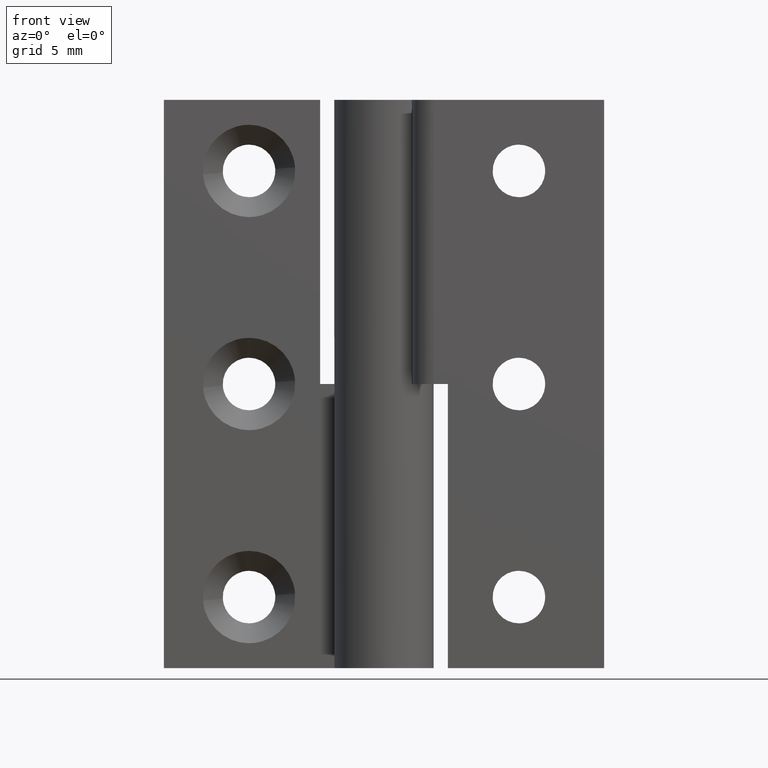
[diagram: clean part render]
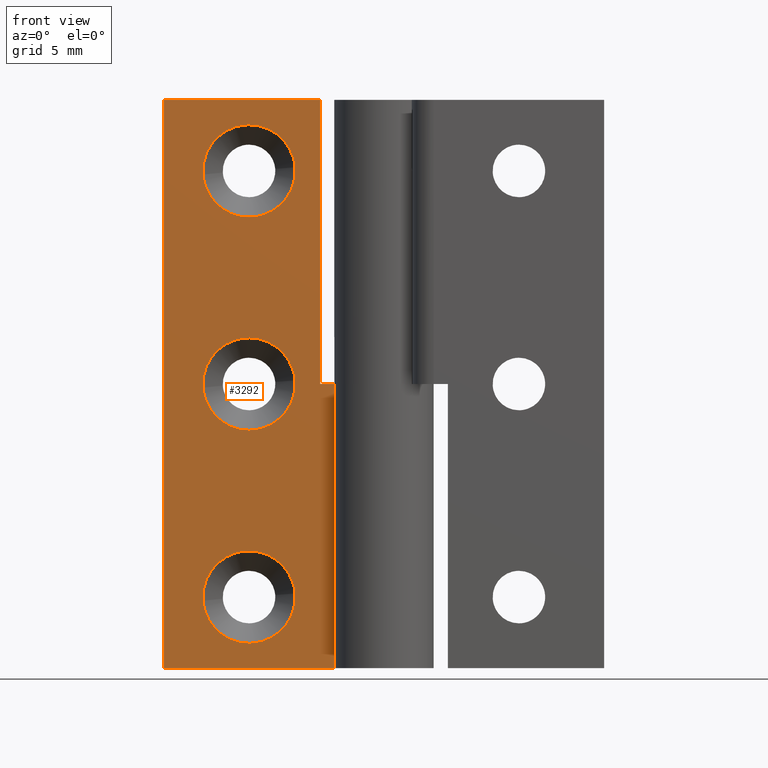
[diagram: same view with one face highlighted and labeled with its STEP entity id]
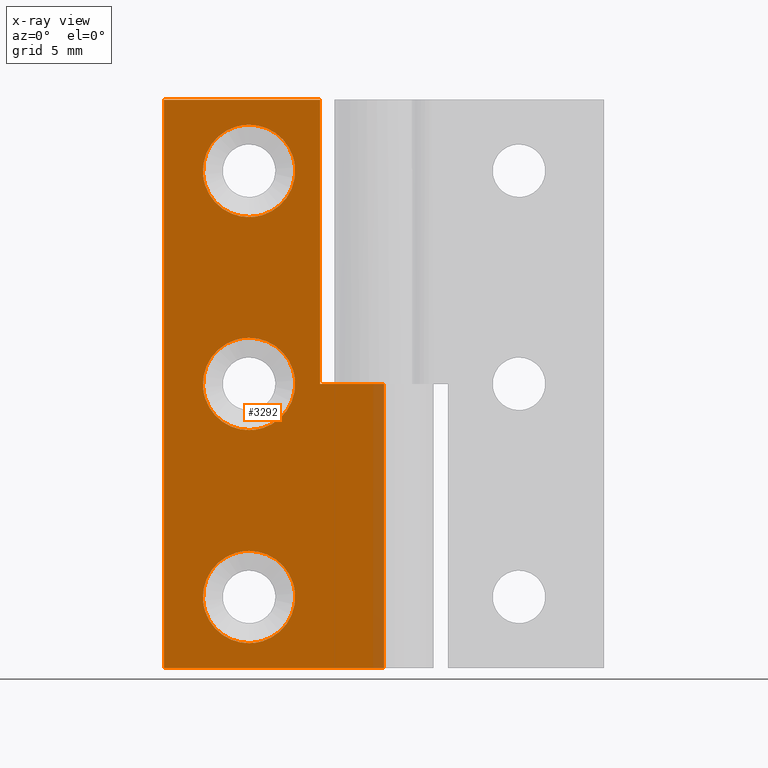
[diagram: x-ray of the same camera — body ghosted, the highlighted face saturated]
A machine part, front view. The second image highlights one B-rep face of the part: STEP entity #3292.
The next image is the same camera in x-ray: the body ghosted, the highlighted face saturated — about 4% of this face is hidden behind the body in this view.
In plain terms, the highlighted face is a freeform B-spline surface patch.
Its self-contained STEP definition (entity closure, byte-faithful):
#2179=CARTESIAN_POINT('',(-6.260018665362887,1.999999999988912,35.254992061200312));
#2180=VERTEX_POINT('',#2179);
#2186=CARTESIAN_POINT('',(-9.500000000000000,2.0,38.250000000000007));
#2187=VERTEX_POINT('',#2186);
#2188=CARTESIAN_POINT('',(-9.500000000000000,2.0,38.250000000000007));
#2189=CARTESIAN_POINT('',(-6.495730902266991,2.0,38.250000000000007));
#2190=CARTESIAN_POINT('',(-6.260018665362887,1.999999999988912,35.254992061200312));
#2198=(BOUNDED_CURVE()B_SPLINE_CURVE(2,(#2188,#2189,#2190),.UNSPECIFIED.,.F.,.U.)B_SPLINE_CURVE_WITH_KNOTS((3,3),(0.0,0.236331300623884),.UNSPECIFIED.)CURVE()GEOMETRIC_REPRESENTATION_ITEM()RATIONAL_B_SPLINE_CURVE((1.0,0.723120658615604,0.969723356153277))REPRESENTATION_ITEM(''));
#2199=EDGE_CURVE('',#2187,#2180,#2198,.T.);
#2201=CARTESIAN_POINT('',(-12.739981334637109,1.999999999988912,34.745007938799688));
#2202=VERTEX_POINT('',#2201);
#2203=CARTESIAN_POINT('',(-12.739981334637109,1.999999999988912,34.745007938799688));
#2204=CARTESIAN_POINT('',(-12.750000000000002,2.000000000000000,34.872307152140735));
#2205=CARTESIAN_POINT('',(-12.750000000000000,2.0,35.0));
#2206=CARTESIAN_POINT('',(-12.750000000000002,2.0,38.250000000000014));
#2207=CARTESIAN_POINT('',(-9.500000000000000,2.0,38.250000000000007));
#2215=(BOUNDED_CURVE()B_SPLINE_CURVE(2,(#2203,#2204,#2205,#2206,#2207),.UNSPECIFIED.,.F.,.U.)B_SPLINE_CURVE_WITH_KNOTS((3,2,3),(0.736331300623884,0.750000000000000,1.0),.UNSPECIFIED.)CURVE()GEOMETRIC_REPRESENTATION_ITEM()RATIONAL_B_SPLINE_CURVE((0.969723356153277,0.983986122570943,1.0,0.707106781186547,1.0))REPRESENTATION_ITEM(''));
#2216=EDGE_CURVE('',#2202,#2187,#2215,.T.);
#2253=CARTESIAN_POINT('',(-9.500000000000000,2.0,31.750000000000000));
#2254=VERTEX_POINT('',#2253);
#2255=CARTESIAN_POINT('',(-9.500000000000000,2.0,31.750000000000000));
#2256=CARTESIAN_POINT('',(-12.504269097733021,2.000000000000000,31.750000000000011));
#2257=CARTESIAN_POINT('',(-12.739981334637111,1.999999999988912,34.745007938799688));
#2265=(BOUNDED_CURVE()B_SPLINE_CURVE(2,(#2255,#2256,#2257),.UNSPECIFIED.,.F.,.U.)B_SPLINE_CURVE_WITH_KNOTS((3,3),(0.500000000000000,0.736331300623884),.UNSPECIFIED.)CURVE()GEOMETRIC_REPRESENTATION_ITEM()RATIONAL_B_SPLINE_CURVE((1.0,0.723120658615603,0.969723356153278))REPRESENTATION_ITEM(''));
#2266=EDGE_CURVE('',#2254,#2202,#2265,.T.);
#2268=CARTESIAN_POINT('',(-6.260018665362887,1.999999999988912,35.254992061200312));
#2269=CARTESIAN_POINT('',(-6.250000000000001,2.000000000000000,35.127692847859258));
#2270=CARTESIAN_POINT('',(-6.250000000000000,2.0,35.0));
#2271=CARTESIAN_POINT('',(-6.249999999999999,2.0,31.749999999999996));
#2272=CARTESIAN_POINT('',(-9.500000000000000,2.0,31.750000000000000));
#2280=(BOUNDED_CURVE()B_SPLINE_CURVE(2,(#2268,#2269,#2270,#2271,#2272),.UNSPECIFIED.,.F.,.U.)B_SPLINE_CURVE_WITH_KNOTS((3,2,3),(0.236331300623884,0.250000000000000,0.500000000000000),.UNSPECIFIED.)CURVE()GEOMETRIC_REPRESENTATION_ITEM()RATIONAL_B_SPLINE_CURVE((0.969723356153277,0.983986122570943,1.0,0.707106781186547,1.0))REPRESENTATION_ITEM(''));
#2281=EDGE_CURVE('',#2180,#2254,#2280,.T.);
#2507=CARTESIAN_POINT('',(-6.260018665362888,1.999999999988912,20.254992061200319));
#2508=VERTEX_POINT('',#2507);
#2514=CARTESIAN_POINT('',(-9.500000000000000,2.0,23.250000000000000));
#2515=VERTEX_POINT('',#2514);
#2516=CARTESIAN_POINT('',(-9.500000000000000,2.0,23.250000000000000));
#2517=CARTESIAN_POINT('',(-6.495730902266995,2.0,23.250000000000007));
#2518=CARTESIAN_POINT('',(-6.260018665362888,1.999999999988912,20.254992061200323));
#2526=(BOUNDED_CURVE()B_SPLINE_CURVE(2,(#2516,#2517,#2518),.UNSPECIFIED.,.F.,.U.)B_SPLINE_CURVE_WITH_KNOTS((3,3),(0.0,0.236331300623883),.UNSPECIFIED.)CURVE()GEOMETRIC_REPRESENTATION_ITEM()RATIONAL_B_SPLINE_CURVE((1.0,0.723120658615604,0.969723356153276))REPRESENTATION_ITEM(''));
#2527=EDGE_CURVE('',#2515,#2508,#2526,.T.);
#2529=CARTESIAN_POINT('',(-12.739981334637109,1.999999999988912,19.745007938799681));
#2530=VERTEX_POINT('',#2529);
#2531=CARTESIAN_POINT('',(-12.739981334637113,1.999999999988912,19.745007938799684));
#2532=CARTESIAN_POINT('',(-12.750000000000004,2.000000000000000,19.872307152140731));
#2533=CARTESIAN_POINT('',(-12.750000000000000,2.0,20.0));
#2534=CARTESIAN_POINT('',(-12.750000000000002,2.0,23.250000000000004));
#2535=CARTESIAN_POINT('',(-9.500000000000000,2.0,23.250000000000000));
#2543=(BOUNDED_CURVE()B_SPLINE_CURVE(2,(#2531,#2532,#2533,#2534,#2535),.UNSPECIFIED.,.F.,.U.)B_SPLINE_CURVE_WITH_KNOTS((3,2,3),(0.736331300623884,0.750000000000000,1.0),.UNSPECIFIED.)CURVE()GEOMETRIC_REPRESENTATION_ITEM()RATIONAL_B_SPLINE_CURVE((0.969723356153277,0.983986122570943,1.0,0.707106781186547,1.0))REPRESENTATION_ITEM(''));
#2544=EDGE_CURVE('',#2530,#2515,#2543,.T.);
#2581=CARTESIAN_POINT('',(-9.500000000000000,2.0,16.750000000000000));
#2582=VERTEX_POINT('',#2581);
#2583=CARTESIAN_POINT('',(-9.500000000000000,2.0,16.750000000000000));
#2584=CARTESIAN_POINT('',(-12.504269097733021,2.000000000000000,16.750000000000007));
#2585=CARTESIAN_POINT('',(-12.739981334637111,1.999999999988912,19.745007938799681));
#2593=(BOUNDED_CURVE()B_SPLINE_CURVE(2,(#2583,#2584,#2585),.UNSPECIFIED.,.F.,.U.)B_SPLINE_CURVE_WITH_KNOTS((3,3),(0.500000000000000,0.736331300623884),.UNSPECIFIED.)CURVE()GEOMETRIC_REPRESENTATION_ITEM()RATIONAL_B_SPLINE_CURVE((1.0,0.723120658615603,0.969723356153278))REPRESENTATION_ITEM(''));
#2594=EDGE_CURVE('',#2582,#2530,#2593,.T.);
#2596=CARTESIAN_POINT('',(-6.260018665362888,1.999999999988912,20.254992061200316));
#2597=CARTESIAN_POINT('',(-6.249999999999999,2.000000000000000,20.127692847859262));
#2598=CARTESIAN_POINT('',(-6.250000000000000,2.0,20.0));
#2599=CARTESIAN_POINT('',(-6.249999999999999,2.0,16.750000000000000));
#2600=CARTESIAN_POINT('',(-9.500000000000000,2.0,16.750000000000000));
#2608=(BOUNDED_CURVE()B_SPLINE_CURVE(2,(#2596,#2597,#2598,#2599,#2600),.UNSPECIFIED.,.F.,.U.)B_SPLINE_CURVE_WITH_KNOTS((3,2,3),(0.236331300623883,0.250000000000000,0.500000000000000),.UNSPECIFIED.)CURVE()GEOMETRIC_REPRESENTATION_ITEM()RATIONAL_B_SPLINE_CURVE((0.969723356153276,0.983986122570943,1.0,0.707106781186547,1.0))REPRESENTATION_ITEM(''));
#2609=EDGE_CURVE('',#2508,#2582,#2608,.T.);
#2835=CARTESIAN_POINT('',(-6.260018665362888,1.999999999988912,5.254992061200315));
#2836=VERTEX_POINT('',#2835);
#2842=CARTESIAN_POINT('',(-9.500000000000000,2.0,8.250000000000000));
#2843=VERTEX_POINT('',#2842);
#2844=CARTESIAN_POINT('',(-9.500000000000000,2.0,8.250000000000000));
#2845=CARTESIAN_POINT('',(-6.495730902266989,2.000000000000000,8.250000000000000));
#2846=CARTESIAN_POINT('',(-6.260018665362888,1.999999999988911,5.254992061200315));
#2854=(BOUNDED_CURVE()B_SPLINE_CURVE(2,(#2844,#2845,#2846),.UNSPECIFIED.,.F.,.U.)B_SPLINE_CURVE_WITH_KNOTS((3,3),(0.0,0.236331300623884),.UNSPECIFIED.)CURVE()GEOMETRIC_REPRESENTATION_ITEM()RATIONAL_B_SPLINE_CURVE((1.0,0.723120658615604,0.969723356153277))REPRESENTATION_ITEM(''));
#2855=EDGE_CURVE('',#2843,#2836,#2854,.T.);
#2857=CARTESIAN_POINT('',(-12.739981334637109,1.999999999988912,4.745007938799684));
#2858=VERTEX_POINT('',#2857);
#2859=CARTESIAN_POINT('',(-12.739981334637109,1.999999999988912,4.745007938799684));
#2860=CARTESIAN_POINT('',(-12.750000000000002,2.000000000000000,4.872307152140735));
#2861=CARTESIAN_POINT('',(-12.750000000000000,2.0,5.0));
#2862=CARTESIAN_POINT('',(-12.750000000000002,2.0,8.250000000000000));
#2863=CARTESIAN_POINT('',(-9.500000000000000,2.0,8.250000000000000));
#2871=(BOUNDED_CURVE()B_SPLINE_CURVE(2,(#2859,#2860,#2861,#2862,#2863),.UNSPECIFIED.,.F.,.U.)B_SPLINE_CURVE_WITH_KNOTS((3,2,3),(0.736331300623884,0.750000000000000,1.0),.UNSPECIFIED.)CURVE()GEOMETRIC_REPRESENTATION_ITEM()RATIONAL_B_SPLINE_CURVE((0.969723356153277,0.983986122570943,1.0,0.707106781186547,1.0))REPRESENTATION_ITEM(''));
#2872=EDGE_CURVE('',#2858,#2843,#2871,.T.);
#2909=CARTESIAN_POINT('',(-9.500000000000000,2.0,1.750000000000000));
#2910=VERTEX_POINT('',#2909);
#2911=CARTESIAN_POINT('',(-9.500000000000000,2.0,1.750000000000000));
#2912=CARTESIAN_POINT('',(-12.504269097733021,2.000000000000000,1.750000000000000));
#2913=CARTESIAN_POINT('',(-12.739981334637111,1.999999999988912,4.745007938799684));
#2921=(BOUNDED_CURVE()B_SPLINE_CURVE(2,(#2911,#2912,#2913),.UNSPECIFIED.,.F.,.U.)B_SPLINE_CURVE_WITH_KNOTS((3,3),(0.500000000000000,0.736331300623884),.UNSPECIFIED.)CURVE()GEOMETRIC_REPRESENTATION_ITEM()RATIONAL_B_SPLINE_CURVE((1.0,0.723120658615603,0.969723356153278))REPRESENTATION_ITEM(''));
#2922=EDGE_CURVE('',#2910,#2858,#2921,.T.);
#2924=CARTESIAN_POINT('',(-6.260018665362887,1.999999999988912,5.254992061200315));
#2925=CARTESIAN_POINT('',(-6.250000000000000,2.000000000000000,5.127692847859264));
#2926=CARTESIAN_POINT('',(-6.250000000000000,2.0,5.0));
#2927=CARTESIAN_POINT('',(-6.249999999999999,2.0,1.750000000000000));
#2928=CARTESIAN_POINT('',(-9.500000000000000,2.0,1.750000000000000));
#2936=(BOUNDED_CURVE()B_SPLINE_CURVE(2,(#2924,#2925,#2926,#2927,#2928),.UNSPECIFIED.,.F.,.U.)B_SPLINE_CURVE_WITH_KNOTS((3,2,3),(0.236331300623884,0.250000000000000,0.500000000000000),.UNSPECIFIED.)CURVE()GEOMETRIC_REPRESENTATION_ITEM()RATIONAL_B_SPLINE_CURVE((0.969723356153277,0.983986122570943,1.0,0.707106781186547,1.0))REPRESENTATION_ITEM(''));
#2937=EDGE_CURVE('',#2836,#2910,#2936,.T.);
#2957=CARTESIAN_POINT('',(-4.500000000000000,2.0,20.0));
#2958=VERTEX_POINT('',#2957);
#2964=CARTESIAN_POINT('',(1.898816E-015,2.0,20.0));
#2965=VERTEX_POINT('',#2964);
#2966=CARTESIAN_POINT('',(1.898816E-015,2.0,20.0));
#2967=CARTESIAN_POINT('',(-4.500000000000000,2.0,20.0));
#2968=QUASI_UNIFORM_CURVE('',1,(#2966,#2967),.UNSPECIFIED.,.F.,.U.);
#2969=EDGE_CURVE('',#2965,#2958,#2968,.T.);
#3034=CARTESIAN_POINT('',(-4.500000000000000,2.0,40.0));
#3035=VERTEX_POINT('',#3034);
#3041=CARTESIAN_POINT('',(-4.500000000000000,2.0,20.0));
#3042=CARTESIAN_POINT('',(-4.500000000000000,2.0,40.0));
#3043=QUASI_UNIFORM_CURVE('',1,(#3041,#3042),.UNSPECIFIED.,.F.,.U.);
#3044=EDGE_CURVE('',#2958,#3035,#3043,.T.);
#3054=CARTESIAN_POINT('',(-15.500000000000000,2.0,0.0));
#3055=VERTEX_POINT('',#3054);
#3098=CARTESIAN_POINT('',(1.898817E-015,2.0,0.0));
#3099=VERTEX_POINT('',#3098);
#3119=CARTESIAN_POINT('',(1.898817E-015,2.0,0.0));
#3120=CARTESIAN_POINT('',(-15.500000000000000,2.0,0.0));
#3121=QUASI_UNIFORM_CURVE('',1,(#3119,#3120),.UNSPECIFIED.,.F.,.U.);
#3122=EDGE_CURVE('',#3099,#3055,#3121,.T.);
#3133=CARTESIAN_POINT('',(-15.500000000000000,2.0,40.0));
#3134=VERTEX_POINT('',#3133);
#3135=CARTESIAN_POINT('',(-15.500000000000000,2.0,40.0));
#3136=CARTESIAN_POINT('',(-15.500000000000000,2.0,0.0));
#3137=QUASI_UNIFORM_CURVE('',1,(#3135,#3136),.UNSPECIFIED.,.F.,.U.);
#3138=EDGE_CURVE('',#3134,#3055,#3137,.T.);
#3167=CARTESIAN_POINT('',(-4.500000000000000,2.0,40.0));
#3168=CARTESIAN_POINT('',(-15.500000000000000,2.0,40.0));
#3169=QUASI_UNIFORM_CURVE('',1,(#3167,#3168),.UNSPECIFIED.,.F.,.U.);
#3170=EDGE_CURVE('',#3035,#3134,#3169,.T.);
#3198=CARTESIAN_POINT('',(1.898816E-015,2.0,20.0));
#3199=CARTESIAN_POINT('',(1.898817E-015,2.0,0.0));
#3200=QUASI_UNIFORM_CURVE('',1,(#3198,#3199),.UNSPECIFIED.,.F.,.U.);
#3201=EDGE_CURVE('',#2965,#3099,#3200,.T.);
#3261=CARTESIAN_POINT('',(-16.274224969957999,2.0,41.997999922472239));
#3262=CARTESIAN_POINT('',(-16.274224969957999,2.0,-1.998000995355844));
#3263=CARTESIAN_POINT('',(0.774225385700391,2.0,41.997999922472239));
#3264=CARTESIAN_POINT('',(0.774225385700391,2.0,-1.998000995355844));
#3265=B_SPLINE_SURFACE_WITH_KNOTS('',1,1,((#3261,#3263),(#3262,#3264)),.UNSPECIFIED.,.F.,.F.,.U.,(2,2),(2,2),(0.0,43.996000917828077),(0.0,17.048450355658389),.UNSPECIFIED.);
#3266=ORIENTED_EDGE('',*,*,#2969,.T.);
#3267=ORIENTED_EDGE('',*,*,#3044,.T.);
#3268=ORIENTED_EDGE('',*,*,#3170,.T.);
#3269=ORIENTED_EDGE('',*,*,#3138,.T.);
#3270=ORIENTED_EDGE('',*,*,#3122,.F.);
#3271=ORIENTED_EDGE('',*,*,#3201,.F.);
#3272=EDGE_LOOP('',(#3266,#3267,#3268,#3269,#3270,#3271));
#3273=FACE_OUTER_BOUND('',#3272,.T.);
#3274=ORIENTED_EDGE('',*,*,#2922,.T.);
#3275=ORIENTED_EDGE('',*,*,#2872,.T.);
#3276=ORIENTED_EDGE('',*,*,#2855,.T.);
#3277=ORIENTED_EDGE('',*,*,#2937,.T.);
#3278=EDGE_LOOP('',(#3274,#3275,#3276,#3277));
#3279=FACE_BOUND('',#3278,.T.);
#3280=ORIENTED_EDGE('',*,*,#2594,.T.);
#3281=ORIENTED_EDGE('',*,*,#2544,.T.);
#3282=ORIENTED_EDGE('',*,*,#2527,.T.);
#3283=ORIENTED_EDGE('',*,*,#2609,.T.);
#3284=EDGE_LOOP('',(#3280,#3281,#3282,#3283));
#3285=FACE_BOUND('',#3284,.T.);
#3286=ORIENTED_EDGE('',*,*,#2266,.T.);
#3287=ORIENTED_EDGE('',*,*,#2216,.T.);
#3288=ORIENTED_EDGE('',*,*,#2199,.T.);
#3289=ORIENTED_EDGE('',*,*,#2281,.T.);
#3290=EDGE_LOOP('',(#3286,#3287,#3288,#3289));
#3291=FACE_BOUND('',#3290,.T.);
#3292=ADVANCED_FACE('',(#3273,#3279,#3285,#3291),#3265,.T.);